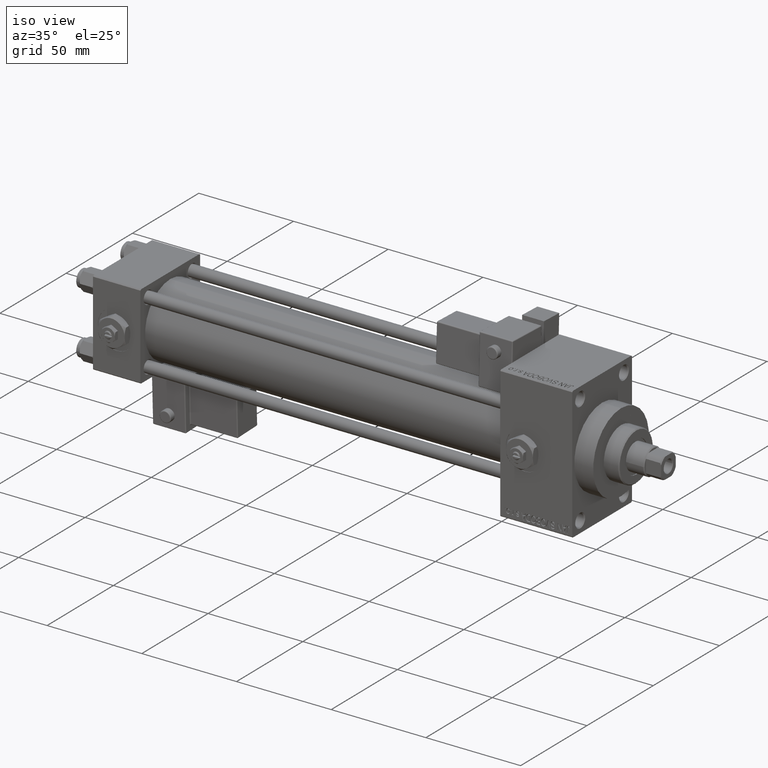
[diagram: clean part render]
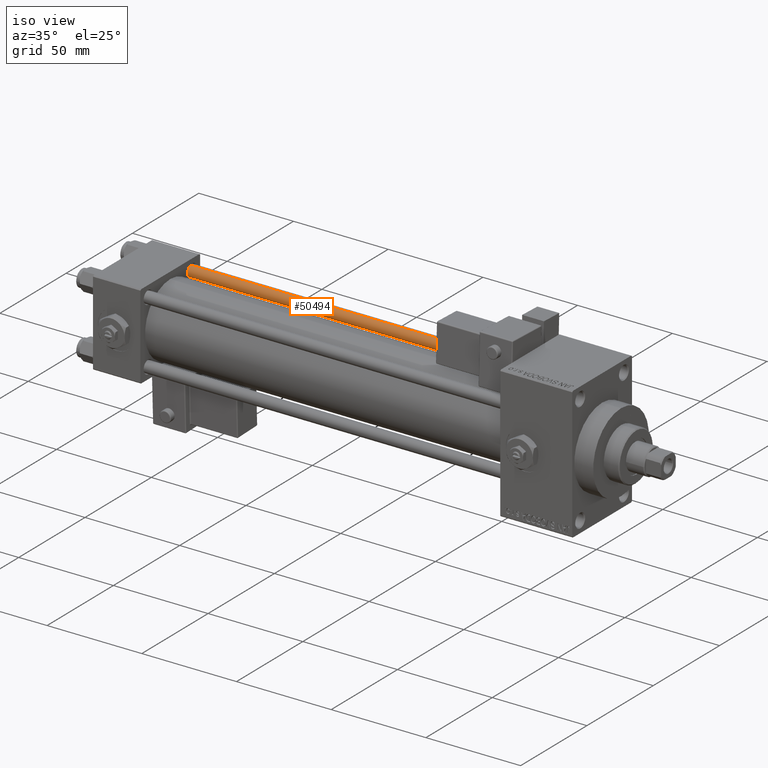
[diagram: same view with one face highlighted and labeled with its STEP entity id]
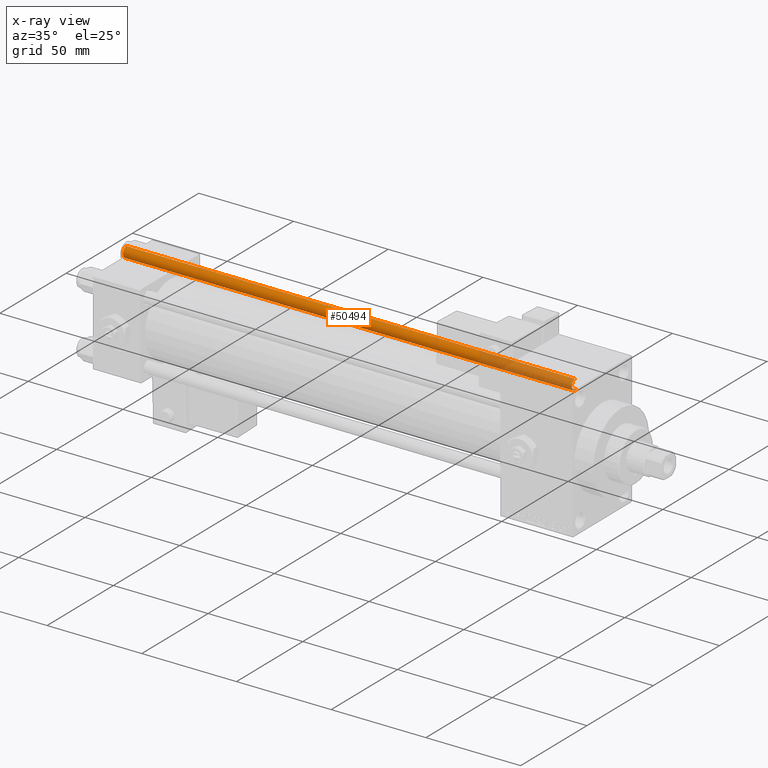
[diagram: x-ray of the same camera — body ghosted, the highlighted face saturated]
A machine part, iso view. The second image highlights one B-rep face of the part: STEP entity #50494.
The next image is the same camera in x-ray: the body ghosted, the highlighted face saturated — about 21% of this face is hidden behind the body in this view.
In plain terms, the highlighted cylindrical surface (edge-blend (fillet) strip) has radius 3 mm, axis along (-1, -0, 0).
Its self-contained STEP definition (entity closure, byte-faithful):
#246 = VERTEX_POINT ( 'NONE', #35835 ) ;
#284 = CARTESIAN_POINT ( 'NONE',  ( 0.000000000000000000, 0.000000000000000000, 237.5000000000000284 ) ) ;
#4891 = EDGE_LOOP ( 'NONE', ( #43450, #27017, #37601, #37966 ) ) ;
#6361 = CARTESIAN_POINT ( 'NONE',  ( 0.000000000000000000, 0.000000000000000000, 0.5000000000000281997 ) ) ;
#12045 = CARTESIAN_POINT ( 'NONE',  ( 3.000000000000000444, 3.673940397442060361E-16, 238.0000000000000000 ) ) ;
#12445 = CIRCLE ( 'NONE', #22364, 3.000000000000000444 ) ;
#13362 = VERTEX_POINT ( 'NONE', #24876 ) ;
#13872 = EDGE_CURVE ( 'NONE', #246, #13362, #42173, .T. ) ;
#14515 = CARTESIAN_POINT ( 'NONE',  ( 3.000000000000000444, 3.673940397442060361E-16, 0.5000000000000281997 ) ) ;
#15000 = DIRECTION ( 'NONE',  ( -0.000000000000000000, -0.000000000000000000, -1.000000000000000000 ) ) ;
#21530 = DIRECTION ( 'NONE',  ( 1.000000000000000000, 0.000000000000000000, 0.000000000000000000 ) ) ;
#22364 = AXIS2_PLACEMENT_3D ( 'NONE', #284, #24688, #21530 ) ;
#23277 = AXIS2_PLACEMENT_3D ( 'NONE', #6361, #26111, #34928 ) ;
#24688 = DIRECTION ( 'NONE',  ( 0.000000000000000000, 0.000000000000000000, -1.000000000000000000 ) ) ;
#24876 = CARTESIAN_POINT ( 'NONE',  ( -3.000000000000000444, 0.000000000000000000, 0.5000000000000281997 ) ) ;
#25947 = EDGE_CURVE ( 'NONE', #34430, #246, #12445, .T. ) ;
#26111 = DIRECTION ( 'NONE',  ( -0.000000000000000000, -0.000000000000000000, 1.000000000000000000 ) ) ;
#26180 = CYLINDRICAL_SURFACE ( 'NONE', #26841, 3.000000000000000444 ) ;
#26841 = AXIS2_PLACEMENT_3D ( 'NONE', #34739, #15000, #34218 ) ;
#27017 = ORIENTED_EDGE ( 'NONE', *, *, #25947, .T. ) ;
#28020 = EDGE_CURVE ( 'NONE', #34430, #37473, #35675, .T. ) ;
#31099 = FACE_OUTER_BOUND ( 'NONE', #4891, .T. ) ;
#31182 = VECTOR ( 'NONE', #31788, 1000.000000000000000 ) ;
#31788 = DIRECTION ( 'NONE',  ( -0.000000000000000000, -0.000000000000000000, -1.000000000000000000 ) ) ;
#33549 = VECTOR ( 'NONE', #34395, 1000.000000000000000 ) ;
#34140 = CARTESIAN_POINT ( 'NONE',  ( -3.000000000000000444, 0.000000000000000000, 238.0000000000000000 ) ) ;
#34218 = DIRECTION ( 'NONE',  ( -1.000000000000000000, 0.000000000000000000, 0.000000000000000000 ) ) ;
#34395 = DIRECTION ( 'NONE',  ( -0.000000000000000000, -0.000000000000000000, -1.000000000000000000 ) ) ;
#34430 = VERTEX_POINT ( 'NONE', #37034 ) ;
#34739 = CARTESIAN_POINT ( 'NONE',  ( 0.000000000000000000, 0.000000000000000000, 238.0000000000000000 ) ) ;
#34928 = DIRECTION ( 'NONE',  ( 1.000000000000000000, 0.000000000000000000, 0.000000000000000000 ) ) ;
#35675 = LINE ( 'NONE', #12045, #31182 ) ;
#35835 = CARTESIAN_POINT ( 'NONE',  ( -3.000000000000000444, 0.000000000000000000, 237.5000000000000284 ) ) ;
#37034 = CARTESIAN_POINT ( 'NONE',  ( 3.000000000000000444, 3.673940397442060361E-16, 237.5000000000000284 ) ) ;
#37473 = VERTEX_POINT ( 'NONE', #14515 ) ;
#37601 = ORIENTED_EDGE ( 'NONE', *, *, #13872, .T. ) ;
#37966 = ORIENTED_EDGE ( 'NONE', *, *, #44623, .T. ) ;
#42173 = LINE ( 'NONE', #34140, #33549 ) ;
#43450 = ORIENTED_EDGE ( 'NONE', *, *, #28020, .F. ) ;
#44623 = EDGE_CURVE ( 'NONE', #13362, #37473, #45632, .T. ) ;
#45632 = CIRCLE ( 'NONE', #23277, 3.000000000000000444 ) ;
#50494 = ADVANCED_FACE ( 'NONE', ( #31099 ), #26180, .T. ) ;